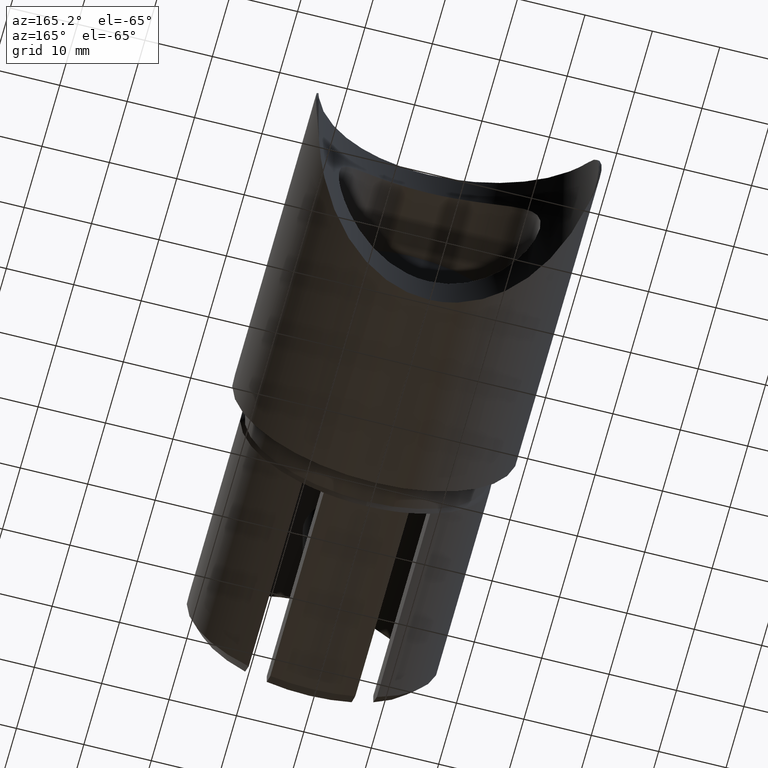
[diagram: clean part render]
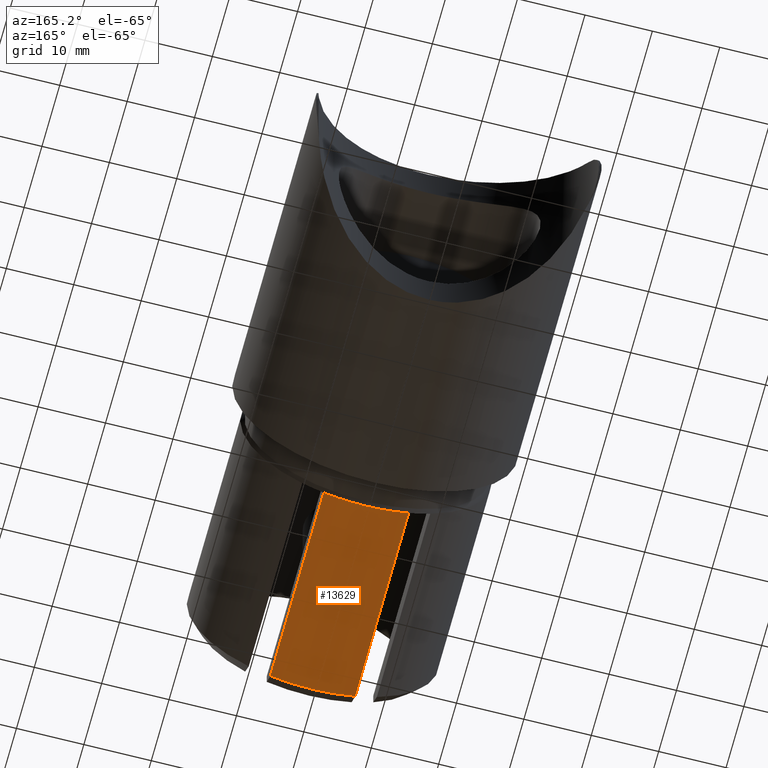
[diagram: same view with one face highlighted and labeled with its STEP entity id]
A machine part, auxiliary view. The second image highlights one B-rep face of the part: STEP entity #13629.
In plain terms, the highlighted cylindrical surface (partial cylindrical patch) has radius 18.7 mm, axis along (0, 1, 0).
Its self-contained STEP definition (entity closure, byte-faithful):
#801 = CARTESIAN_POINT ( 'NONE',  ( 0.0000000000000000000, -35.00000000000001400, 0.0000000000000000000 ) ) ;
#851 = DIRECTION ( 'NONE',  ( 0.0000000000000000000, 1.000000000000000000, 0.0000000000000000000 ) ) ;
#1438 = CARTESIAN_POINT ( 'NONE',  ( -6.299999999999999800, -35.00000000000001400, -17.60681686165900900 ) ) ;
#1742 = VECTOR ( 'NONE', #13855, 1000.000000000000000 ) ;
#1790 = VECTOR ( 'NONE', #13401, 1000.000000000000000 ) ;
#1981 = ORIENTED_EDGE ( 'NONE', *, *, #13908, .T. ) ;
#2544 = ORIENTED_EDGE ( 'NONE', *, *, #2557, .T. ) ;
#2557 = EDGE_CURVE ( 'NONE', #6560, #7318, #7527, .T. ) ;
#3173 = VERTEX_POINT ( 'NONE', #9515 ) ;
#3987 = AXIS2_PLACEMENT_3D ( 'NONE', #8518, #7398, #7540 ) ;
#4185 = VERTEX_POINT ( 'NONE', #10296 ) ;
#4255 = AXIS2_PLACEMENT_3D ( 'NONE', #801, #851, #6069 ) ;
#4357 = CARTESIAN_POINT ( 'NONE',  ( 6.300000000000000700, -4.999999999999990200, -17.60681686165901300 ) ) ;
#4425 = FACE_OUTER_BOUND ( 'NONE', #7807, .T. ) ;
#4459 = LINE ( 'NONE', #11215, #1790 ) ;
#4933 = DIRECTION ( 'NONE',  ( 0.0000000000000000000, 0.0000000000000000000, -1.000000000000000000 ) ) ;
#5376 = VERTEX_POINT ( 'NONE', #1438 ) ;
#6069 = DIRECTION ( 'NONE',  ( 0.0000000000000000000, 0.0000000000000000000, -1.000000000000000000 ) ) ;
#6226 = CARTESIAN_POINT ( 'NONE',  ( 6.299999999999999800, -37.00000000000000000, -17.60681686165900900 ) ) ;
#6560 = VERTEX_POINT ( 'NONE', #12275 ) ;
#6614 = CIRCLE ( 'NONE', #4255, 18.69999999999999900 ) ;
#7318 = VERTEX_POINT ( 'NONE', #4357 ) ;
#7398 = DIRECTION ( 'NONE',  ( -0.0000000000000000000, -1.000000000000000000, -0.0000000000000000000 ) ) ;
#7482 = AXIS2_PLACEMENT_3D ( 'NONE', #10861, #11900, #9919 ) ;
#7527 = CIRCLE ( 'NONE', #10190, 18.69999999999999900 ) ;
#7540 = DIRECTION ( 'NONE',  ( 0.0000000000000000000, 0.0000000000000000000, -1.000000000000000000 ) ) ;
#7593 = LINE ( 'NONE', #6226, #1742 ) ;
#7807 = EDGE_LOOP ( 'NONE', ( #12186, #2544, #1981, #10709, #13713 ) ) ;
#8518 = CARTESIAN_POINT ( 'NONE',  ( 0.0000000000000000000, -4.999999999999984000, 0.0000000000000000000 ) ) ;
#9515 = CARTESIAN_POINT ( 'NONE',  ( 6.299999999999999800, -35.00000000000000000, -17.60681686165902700 ) ) ;
#9764 = CYLINDRICAL_SURFACE ( 'NONE', #7482, 18.69999999999999900 ) ;
#9919 = DIRECTION ( 'NONE',  ( 0.0000000000000000000, 0.0000000000000000000, 1.000000000000000000 ) ) ;
#10133 = CIRCLE ( 'NONE', #3987, 18.69999999999999900 ) ;
#10190 = AXIS2_PLACEMENT_3D ( 'NONE', #12219, #12367, #4933 ) ;
#10291 = EDGE_CURVE ( 'NONE', #5376, #4185, #4459, .T. ) ;
#10296 = CARTESIAN_POINT ( 'NONE',  ( -6.299999999999998900, -4.999999999999992000, -17.60681686165901600 ) ) ;
#10709 = ORIENTED_EDGE ( 'NONE', *, *, #11361, .T. ) ;
#10861 = CARTESIAN_POINT ( 'NONE',  ( 0.0000000000000000000, -37.00000000000000000, 0.0000000000000000000 ) ) ;
#11215 = CARTESIAN_POINT ( 'NONE',  ( -6.299999999999999800, -37.00000000000000000, -17.60681686165900900 ) ) ;
#11361 = EDGE_CURVE ( 'NONE', #3173, #5376, #6614, .T. ) ;
#11900 = DIRECTION ( 'NONE',  ( -0.0000000000000000000, 1.000000000000000000, -0.0000000000000000000 ) ) ;
#12124 = EDGE_CURVE ( 'NONE', #4185, #6560, #10133, .T. ) ;
#12186 = ORIENTED_EDGE ( 'NONE', *, *, #12124, .T. ) ;
#12219 = CARTESIAN_POINT ( 'NONE',  ( 0.0000000000000000000, -4.999999999999984000, 0.0000000000000000000 ) ) ;
#12275 = CARTESIAN_POINT ( 'NONE',  ( 0.0000000000000000000, -4.999999999999984000, -18.69999999999999900 ) ) ;
#12367 = DIRECTION ( 'NONE',  ( -0.0000000000000000000, -1.000000000000000000, -0.0000000000000000000 ) ) ;
#13401 = DIRECTION ( 'NONE',  ( -0.0000000000000000000, 1.000000000000000000, -0.0000000000000000000 ) ) ;
#13629 = ADVANCED_FACE ( 'NONE', ( #4425 ), #9764, .T. ) ;
#13713 = ORIENTED_EDGE ( 'NONE', *, *, #10291, .T. ) ;
#13855 = DIRECTION ( 'NONE',  ( 0.0000000000000000000, -1.000000000000000000, 0.0000000000000000000 ) ) ;
#13908 = EDGE_CURVE ( 'NONE', #7318, #3173, #7593, .T. ) ;